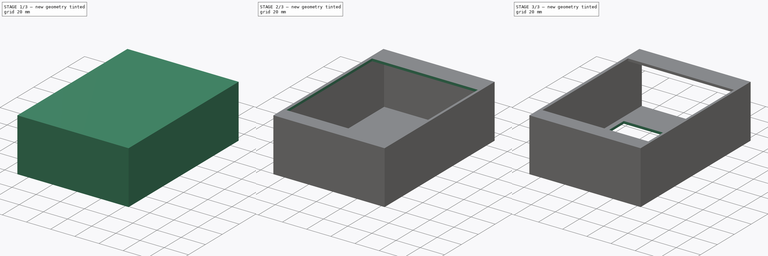
[diagram: build sequence overview — one tinted view per stage of 3, left to right]
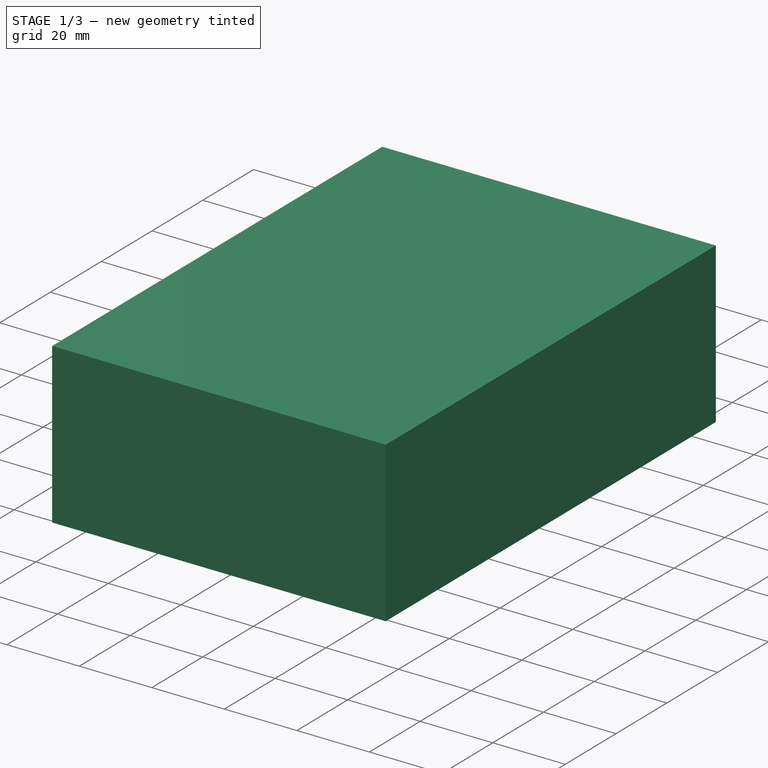
[diagram: stage 1 of 3 — iso view after this stage's code; geometry added in this stage tinted green]
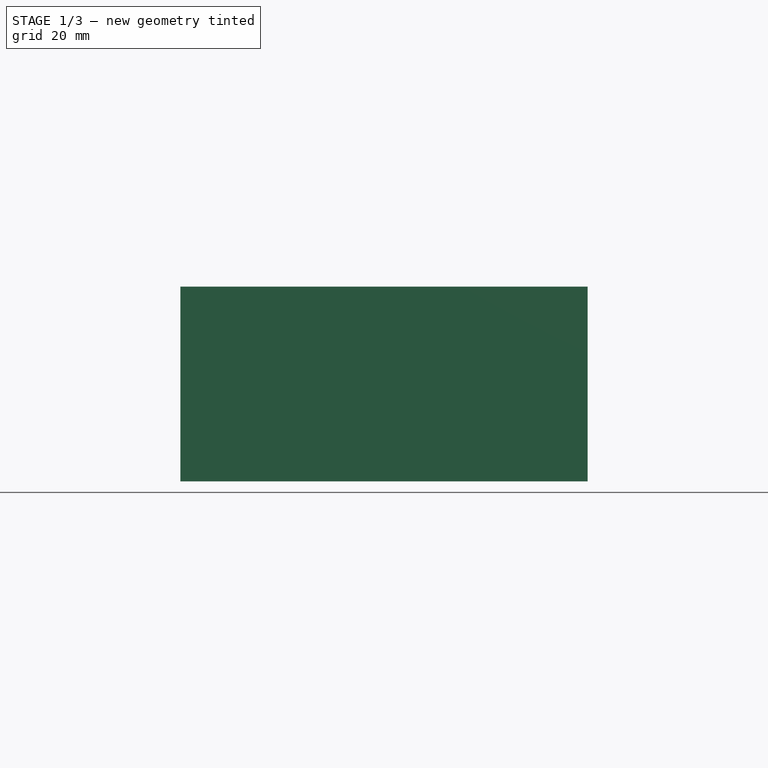
[diagram: stage 1 of 3 — front view after this stage's code; geometry added in this stage tinted green]
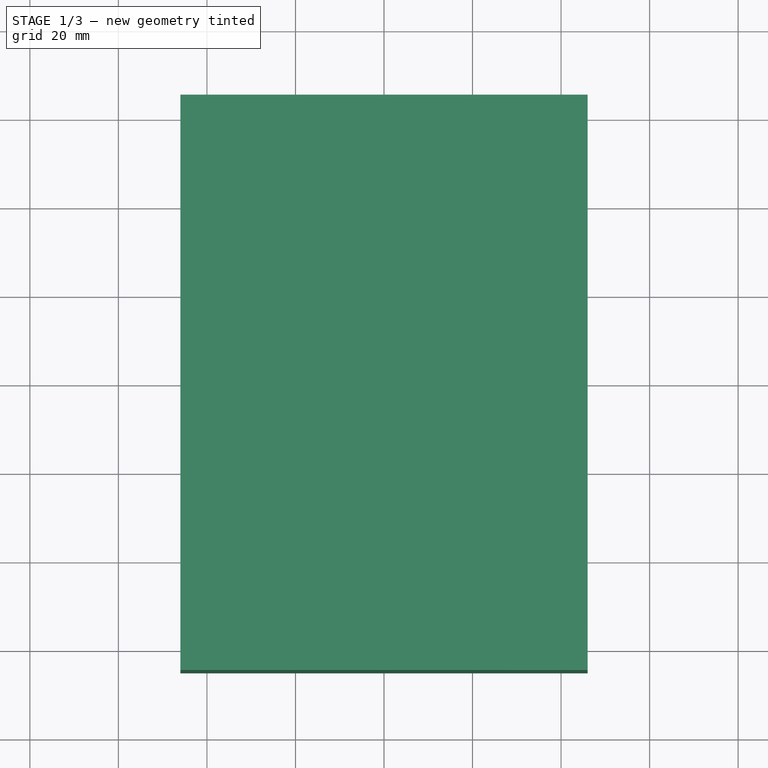
[diagram: stage 1 of 3 — top view after this stage's code; geometry added in this stage tinted green]
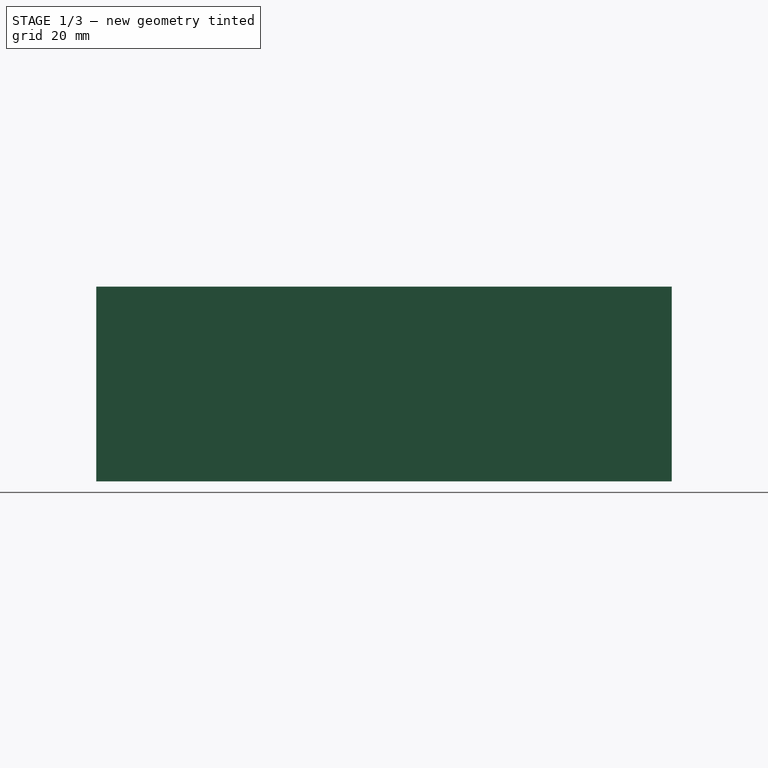
[diagram: stage 1 of 3 — right view after this stage's code; geometry added in this stage tinted green]
FCSTD DOCUMENT  (FreeCAD 0.19R24291 (Git))
Label: lcr_meter_case
License: All rights reserved
LicenseURL: http://en.wikipedia.org/wiki/All_rights_reserved
objects: Sketcher::SketchObject×5, PartDesign::Pocket×4, PartDesign::Pad×1, PartDesign::Body×1
note: 16 computed .brp shape members not serialized (recipe doc carries the construction recipe); baked Part::Feature solids carry a one-line shape summary decoded from their .brp

FEATURE [Sketcher::SketchObject] Sketch
  FullyConstrained = true
  MapMode = 5
  Support = -> [XY_Plane]
  sketch-geometry (4):
    g0: LineSegment StartX=-46 StartY=65 StartZ=0 EndX=46 EndY=65 EndZ=0
    g1: LineSegment StartX=46 StartY=65 StartZ=0 EndX=46 EndY=-65 EndZ=0
    g2: LineSegment StartX=46 StartY=-65 StartZ=0 EndX=-46 EndY=-65 EndZ=0
    g3: LineSegment StartX=-46 StartY=-65 StartZ=0 EndX=-46 EndY=65 EndZ=0
  constraints (10):
    c: Coincident(g0,g1)
    c: Coincident(g1,g2)
    c: Coincident(g2,g3)
    c: Coincident(g3,g0)
    c: Horizontal(g0)
    c: Vertical(g3)
    c: DistanceX(g2,g2) = 92
    c: DistanceY(g3,g3) = 130
    c: Symmetric(g1,g2,g-2)
    c: Symmetric(g1,g0,g-1)
FEATURE [PartDesign::Pad] Pad
  Direction = (1,1,1)
  Length = 44
  Length2 = 100
  Profile = -> Sketch
  Refine = true
  Type = 0
FEATURE [Sketcher::SketchObject] Sketch001
  AttachmentOffset = pos=(0,0,42) rot=(0,0,1;0rad)
  FullyConstrained = true
  MapMode = 5
  Placement = pos=(0,0,42) rot=(0,0,1;0rad)
  Support = -> [XY_Plane]
  sketch-geometry (4):
    g0: LineSegment StartX=-44 StartY=63 StartZ=0 EndX=44 EndY=63 EndZ=0
    g1: LineSegment StartX=44 StartY=63 StartZ=0 EndX=44 EndY=-63 EndZ=0
    g2: LineSegment StartX=44 StartY=-63 StartZ=0 EndX=-44 EndY=-63 EndZ=0
    g3: LineSegment StartX=-44 StartY=-63 StartZ=0 EndX=-44 EndY=63 EndZ=0
  constraints (10):
    c: Coincident(g0,g1)
    c: Coincident(g1,g2)
    c: Coincident(g2,g3)
    c: Coincident(g3,g0)
    c: Horizontal(g0)
    c: Vertical(g3)
    c: DistanceX(g2,g2) = 88
    c: DistanceY(g3,g3) = 126
    c: Symmetric(g1,g2,g-2)
    c: Symmetric(g1,g0,g-1)
FEATURE [PartDesign::Pocket] Pocket
  BaseFeature = -> Pad
  Length = 40
  Length2 = 100
  Profile = -> Sketch001
  Refine = true
  Type = 0
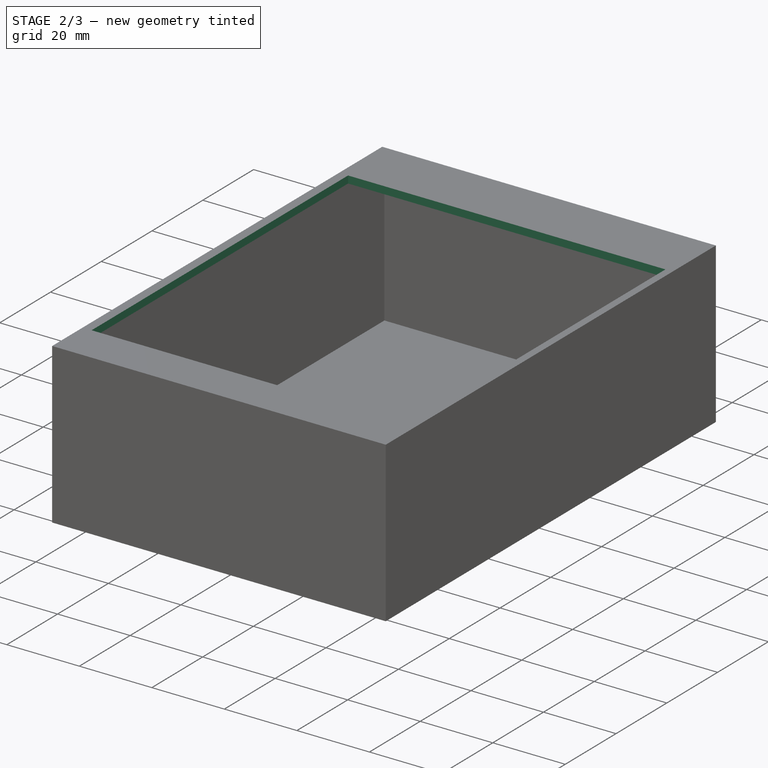
[diagram: stage 2 of 3 — iso view after this stage's code; geometry added in this stage tinted green]
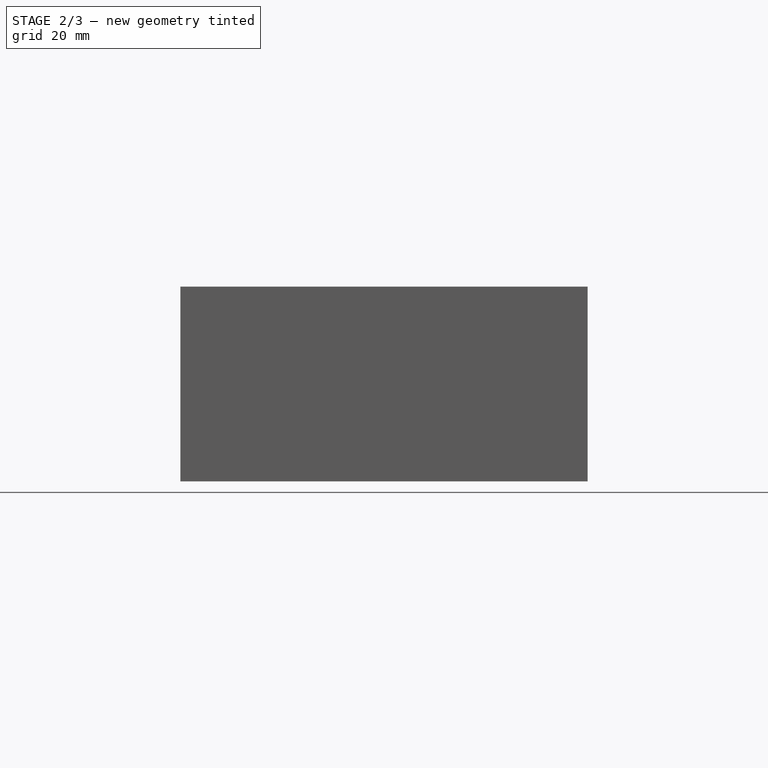
[diagram: stage 2 of 3 — front view after this stage's code; geometry added in this stage tinted green]
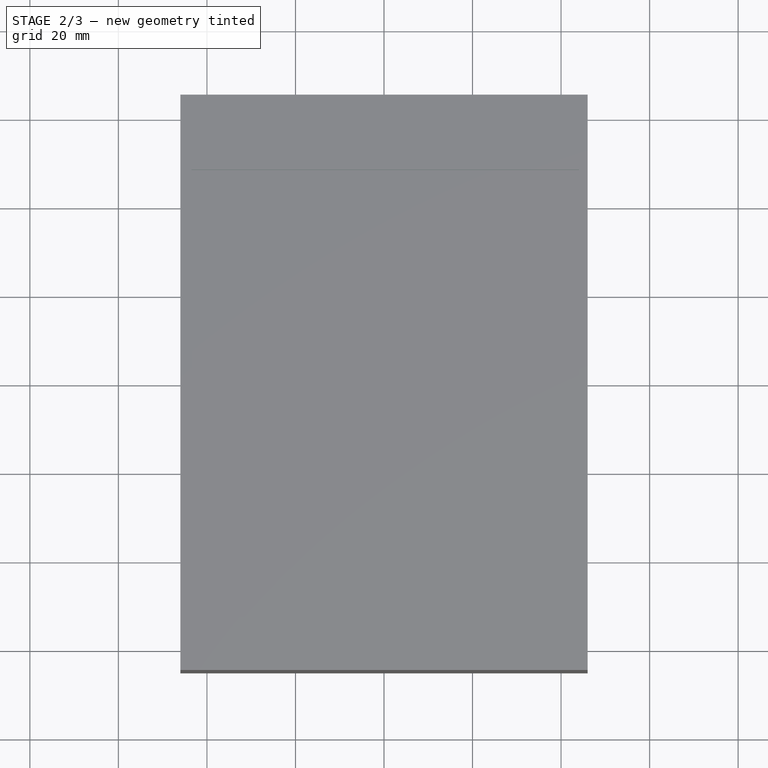
[diagram: stage 2 of 3 — top view after this stage's code; geometry added in this stage tinted green]
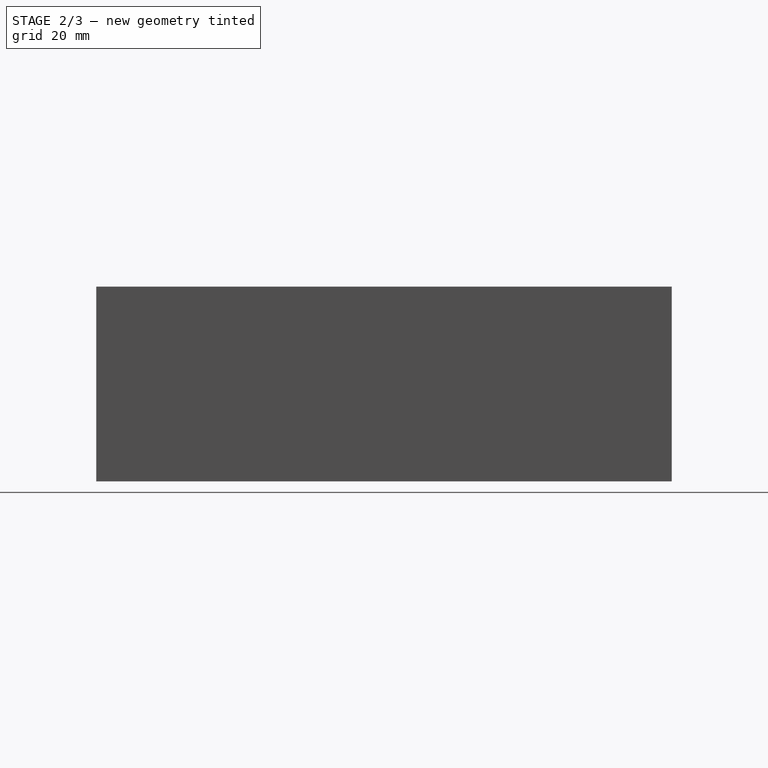
[diagram: stage 2 of 3 — right view after this stage's code; geometry added in this stage tinted green]
FEATURE [Sketcher::SketchObject] Sketch002
  AttachmentOffset = pos=(0,0,44) rot=(0,0,1;0rad)
  ExternalGeometry = -> [Pocket]
  FullyConstrained = false
  MapMode = 5
  Placement = pos=(0,0,44) rot=(0,0,1;0rad)
  Support = -> [XY_Plane]
  sketch-geometry (4):
    g0: LineSegment StartX=-43.5187 StartY=48 StartZ=0 EndX=44 EndY=48 EndZ=0
    g1: LineSegment StartX=44 StartY=48 StartZ=0 EndX=44 EndY=-53 EndZ=0
    g2: LineSegment StartX=44 StartY=-53 StartZ=0 EndX=-43.5187 EndY=-53 EndZ=0
    g3: LineSegment StartX=-43.5187 StartY=-53 StartZ=0 EndX=-43.5187 EndY=48 EndZ=0
  constraints (10):
    c: Coincident(g0,g1)
    c: Coincident(g3,g0)
    c: Horizontal(g0)
    c: Vertical(g1)
    c: Vertical(g3)
    c: DistanceY(g0,g-3) = 15
    c: Coincident(g3,g2)
    c: Coincident(g2,g1)
    c: Horizontal(g2)
    c: DistanceY(g-4,g1) = 10
FEATURE [PartDesign::Pocket] Pocket001
  BaseFeature = -> Pocket
  Length = 2
  Length2 = 100
  Profile = -> Sketch002
  Refine = true
  Type = 0
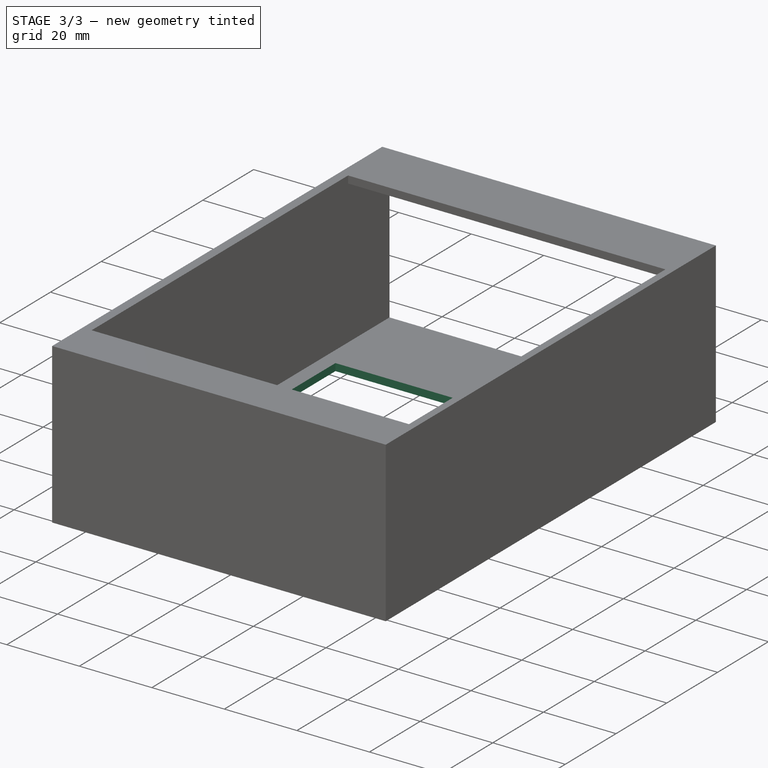
[diagram: stage 3 of 3 — iso view after this stage's code; geometry added in this stage tinted green]
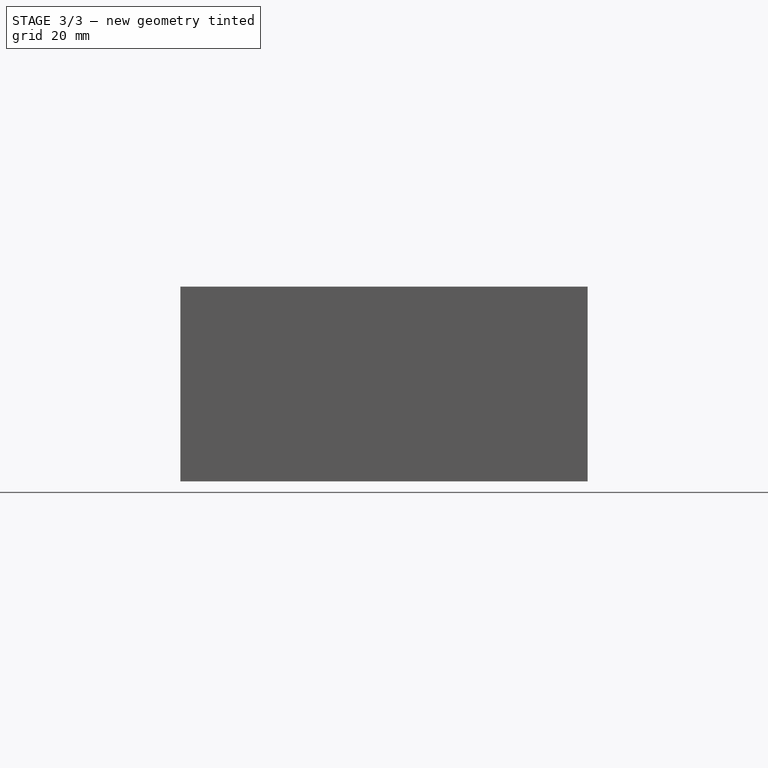
[diagram: stage 3 of 3 — front view after this stage's code; geometry added in this stage tinted green]
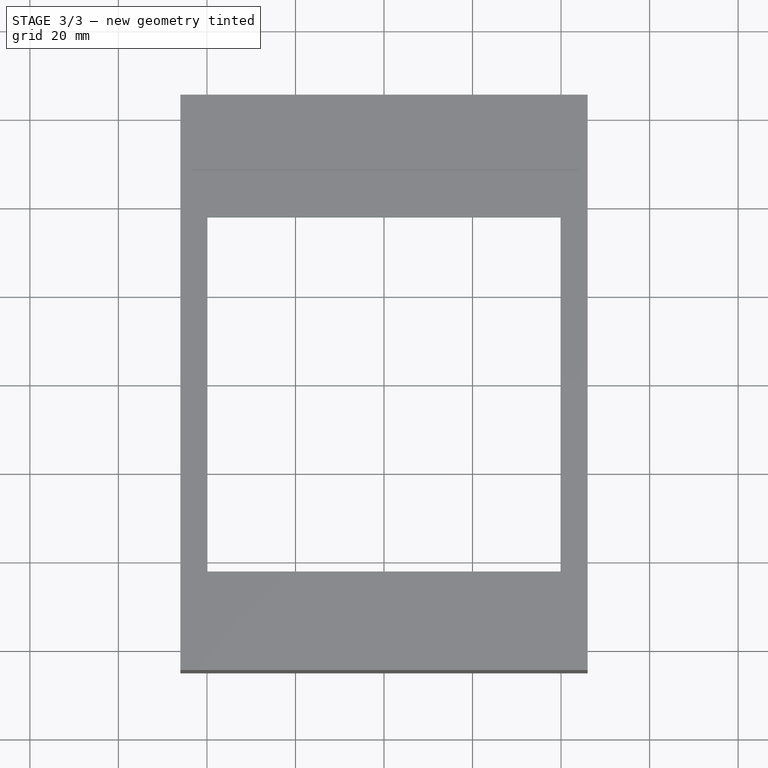
[diagram: stage 3 of 3 — top view after this stage's code; geometry added in this stage tinted green]
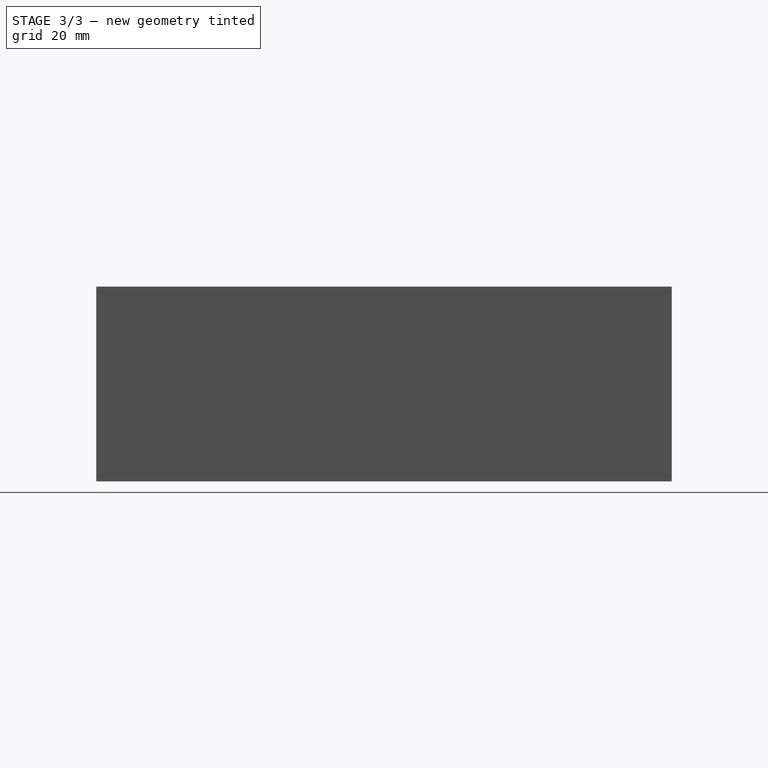
[diagram: stage 3 of 3 — right view after this stage's code; geometry added in this stage tinted green]
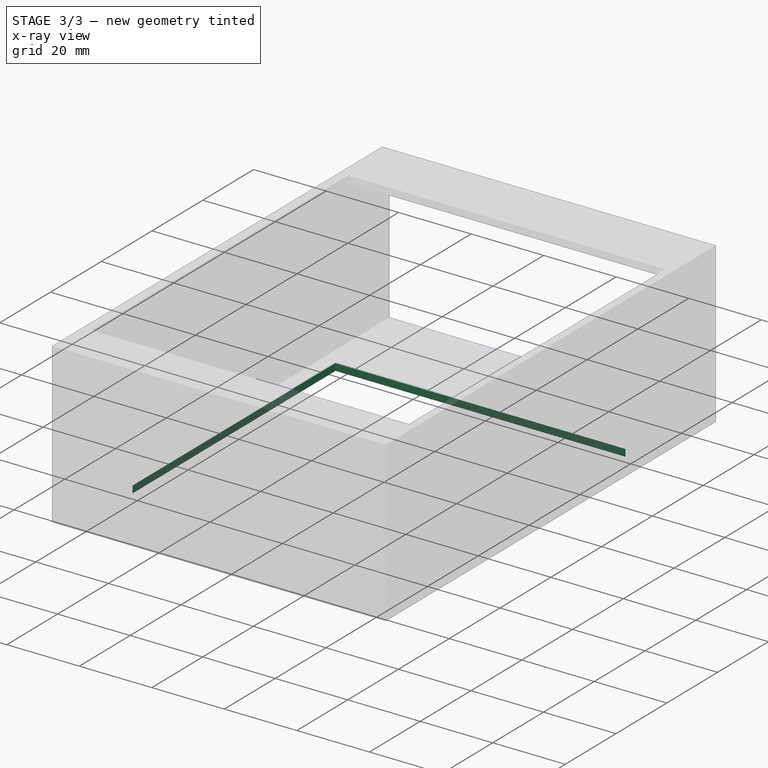
[diagram: stage 3 of 3 — x-ray composite at the iso view; earlier geometry ghosted, this stage's added geometry solid]
FEATURE [Sketcher::SketchObject] Sketch004
  ExternalGeometry = -> [Pocket]
  FullyConstrained = true
  MapMode = 5
  Support = -> [XY_Plane]
  sketch-geometry (4):
    g0: LineSegment StartX=-40 StartY=38 StartZ=0 EndX=40 EndY=38 EndZ=0
    g1: LineSegment StartX=40 StartY=38 StartZ=0 EndX=40 EndY=-42 EndZ=0
    g2: LineSegment StartX=40 StartY=-42 StartZ=0 EndX=-40 EndY=-42 EndZ=0
    g3: LineSegment StartX=-40 StartY=-42 StartZ=0 EndX=-40 EndY=38 EndZ=0
  constraints (11):
    c: Coincident(g0,g1)
    c: Coincident(g3,g0)
    c: Vertical(g1)
    c: Vertical(g3)
    c: DistanceY(g0,g-3) = 25
    c: Coincident(g2,g3)
    c: Coincident(g2,g1)
    c: Horizontal(g2)
    c: DistanceY(g1,g1) = 80
    c: Symmetric(g0,g0,g-2)
    c: DistanceX(g0,g0) = 80
FEATURE [PartDesign::Pocket] Pocket003
  BaseFeature = -> Pocket001
  Length = 2
  Length2 = 100
  Profile = -> Sketch004
  Refine = true
  Reversed = true
  Type = 0
FEATURE [Sketcher::SketchObject] Sketch005
  AttachmentOffset = pos=(0,0,-65) rot=(0,0,1;0rad)
  ExternalGeometry = -> [Pocket003]
  FullyConstrained = true
  MapMode = 5
  Placement = pos=(0,65,1.44e-14) rot=(1,0,0;1.5708rad)
  Support = -> [XZ_Plane]
  sketch-geometry (4):
    g0: LineSegment StartX=-44 StartY=42 StartZ=0 EndX=44 EndY=42 EndZ=0
    g1: LineSegment StartX=44 StartY=42 StartZ=0 EndX=44 EndY=2 EndZ=0
    g2: LineSegment StartX=44 StartY=2 StartZ=0 EndX=-44 EndY=2 EndZ=0
    g3: LineSegment StartX=-44 StartY=2 StartZ=0 EndX=-44 EndY=42 EndZ=0
  constraints (9):
    c: Coincident(g0,g1)
    c: Coincident(g1,g2)
    c: Coincident(g2,g3)
    c: Coincident(g3,g0)
    c: Horizontal(g2)
    c: Vertical(g3)
    c: Coincident(g1,g-3)
    c: Coincident(g0,g-3)
    c: Coincident(g0,g-4)
FEATURE [PartDesign::Pocket] Pocket004
  BaseFeature = -> Pocket003
  Length = 2
  Length2 = 100
  Profile = -> Sketch005
  Refine = true
  Reversed = true
  Type = 0
FEATURE [PartDesign::Body] Body
  Group = -> [Sketch,Pad,Sketch001,Pocket,Sketch002,Pocket001,Sketch004,Pocket003,Sketch005,Pocket004]
  Origin = -> Origin
  Tip = -> Pocket004
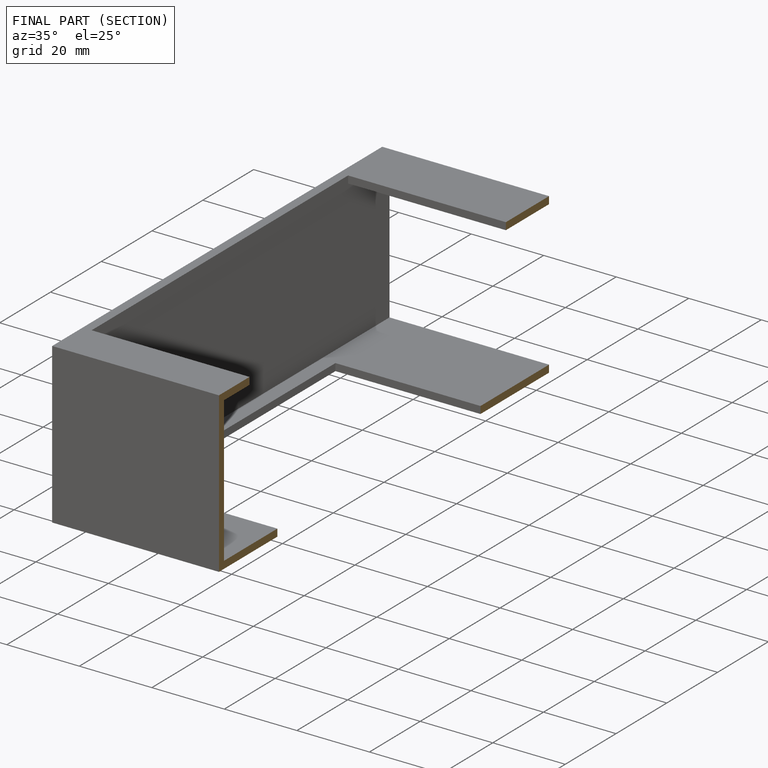
[diagram: finished part — half-section view (interior)]
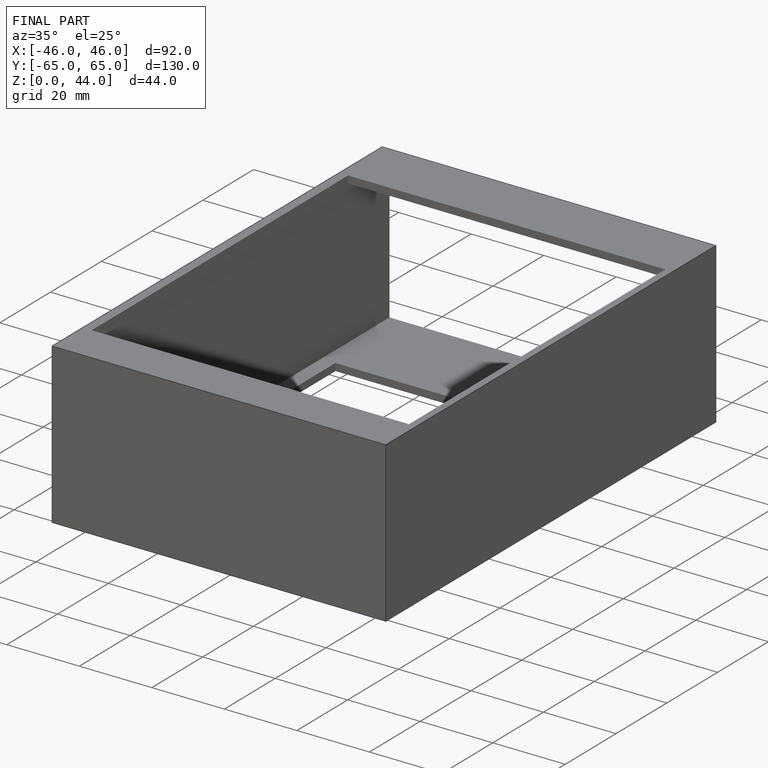
[diagram: finished part — iso view with bounding-box wireframe]
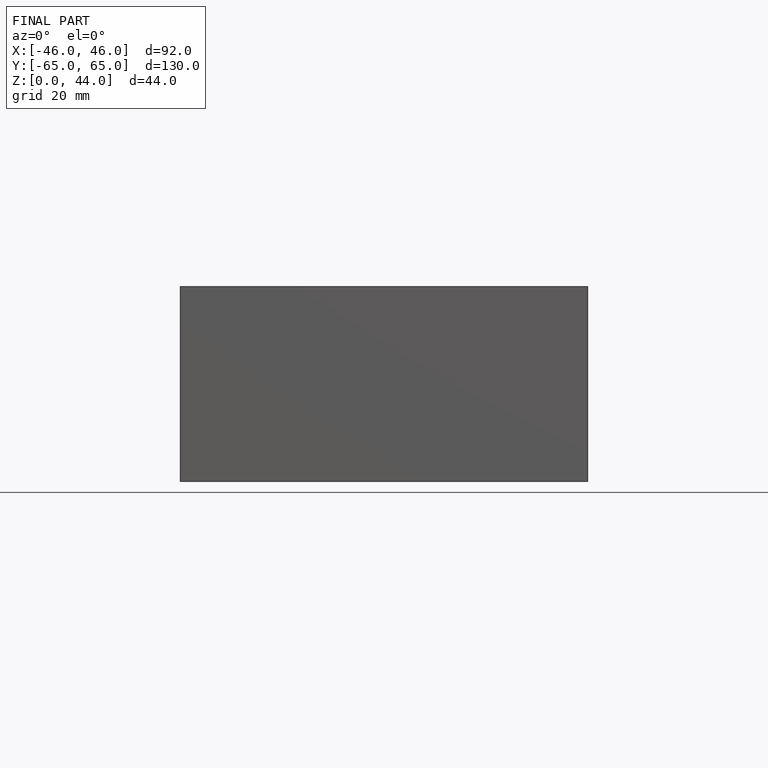
[diagram: finished part — front view with bounding-box wireframe]
